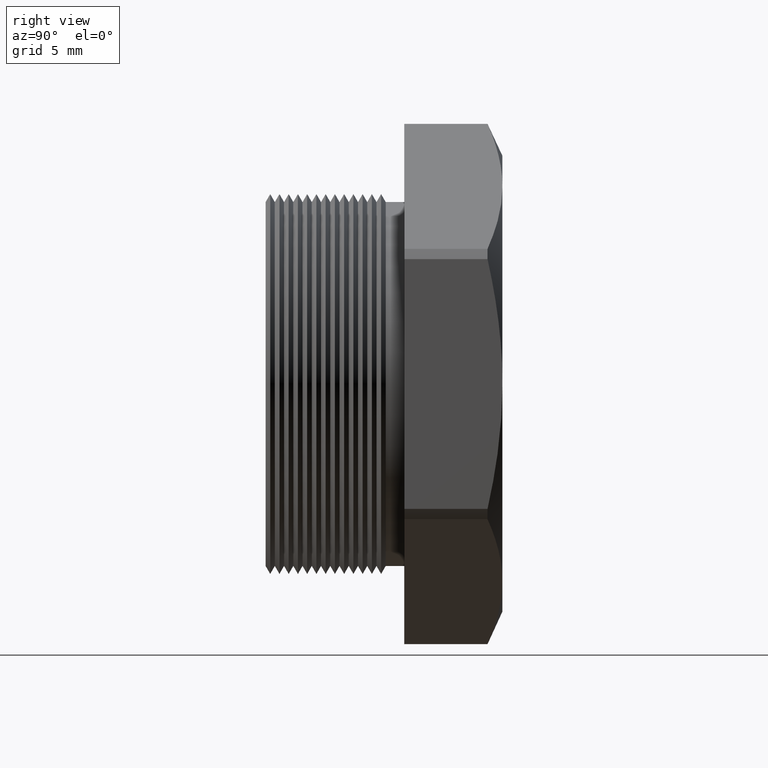
[diagram: clean part render]
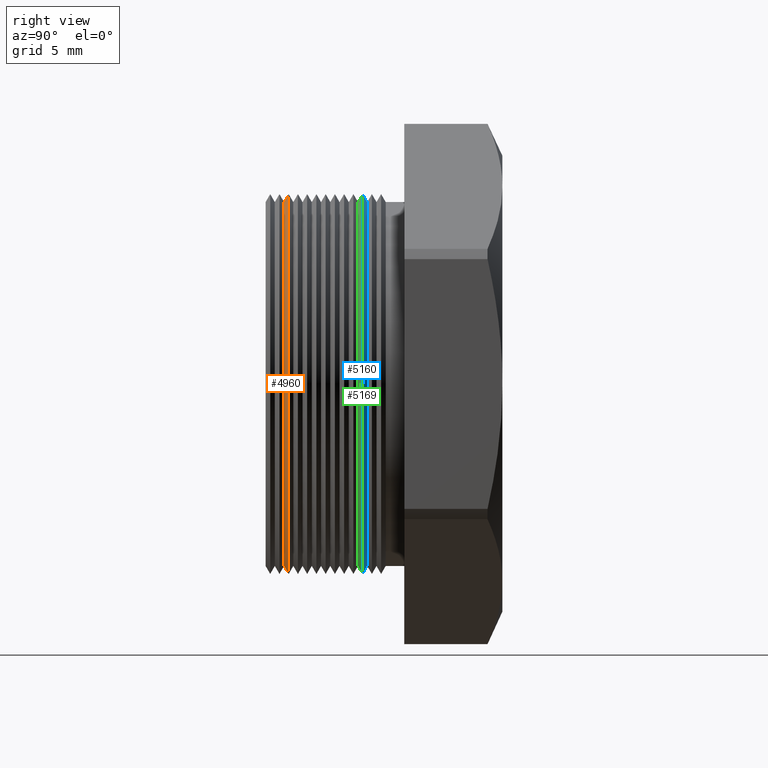
[diagram: same view with three faces highlighted in distinct colors, each labeled with its STEP entity id]
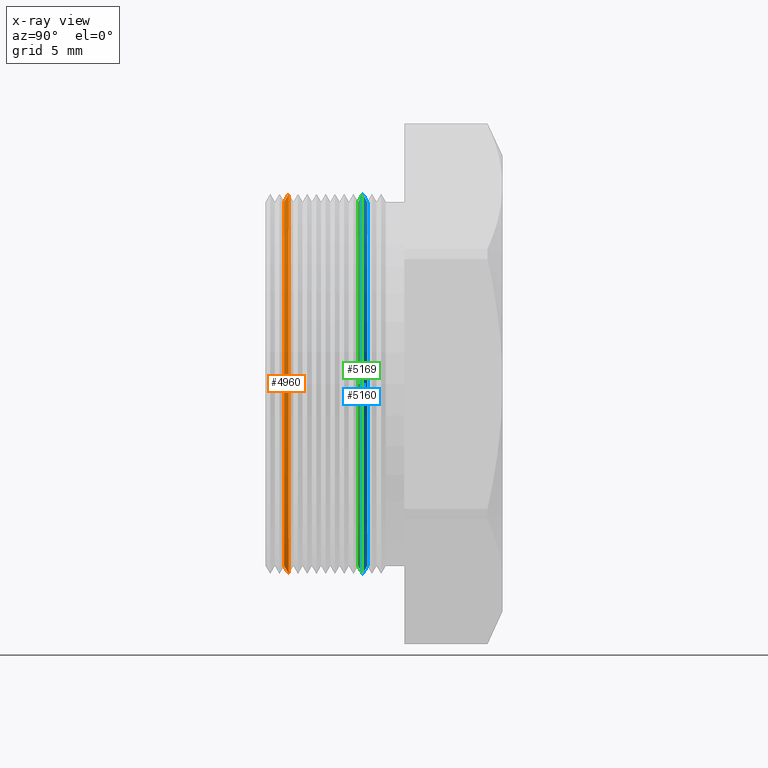
[diagram: x-ray of the same camera — body ghosted, the three highlighted faces saturated]
A machine part, right view with three faces highlighted in distinct colors.
The next image is the same camera in x-ray (body ghosted, the three faces saturated) — at least one of them is partly hidden behind the body in this view.
Their STEP definitions:

[orange] entity #4960 — the highlighted conical surface has half-angle 60 deg.
#1916 = CARTESIAN_POINT ( 'NONE',  ( 0.0000000000000000000, 0.03755489058294799600, -0.3287738815610546400 ) ) ;
#1917 = CARTESIAN_POINT ( 'NONE',  ( 0.0000000000000000000, 0.02960253635588708600, -0.3150000000000000000 ) ) ;
#1931 = DIRECTION ( 'NONE',  ( 0.0000000000000000000, 0.4999999999999991100, 0.8660254037844391500 ) ) ;
#1932 = VECTOR ( 'NONE', #1931, 39.37007874015748100 ) ;
#1933 = CARTESIAN_POINT ( 'NONE',  ( 0.0000000000000000000, 0.03755489058294799600, 0.3287738815610546400 ) ) ;
#1934 = LINE ( 'NONE', #1933, #1932 ) ;
#1935 = CARTESIAN_POINT ( 'NONE',  ( 4.026318816969966200E-017, 0.03755489058294799600, 0.3287738815610546400 ) ) ;
#1936 = DIRECTION ( 'NONE',  ( 0.0000000000000000000, 0.0000000000000000000, 1.000000000000000000 ) ) ;
#1937 = DIRECTION ( 'NONE',  ( -0.0000000000000000000, 1.000000000000000000, -0.0000000000000000000 ) ) ;
#1938 = CARTESIAN_POINT ( 'NONE',  ( 0.0000000000000000000, 0.03755489058294799600, 0.0000000000000000000 ) ) ;
#1939 = AXIS2_PLACEMENT_3D ( 'NONE', #1938, #1937, #1936 ) ;
#1940 = CIRCLE ( 'NONE', #1939, 0.3287738815610546400 ) ;
#1941 = DIRECTION ( 'NONE',  ( 1.060575238724907500E-016, 0.4999999999999991100, -0.8660254037844391500 ) ) ;
#1942 = VECTOR ( 'NONE', #1941, 39.37007874015748100 ) ;
#1943 = CARTESIAN_POINT ( 'NONE',  ( 4.026318816969965600E-017, 0.03755489058294799600, -0.3287738815610546400 ) ) ;
#1944 = LINE ( 'NONE', #1943, #1942 ) ;
#2062 = CARTESIAN_POINT ( 'NONE',  ( 3.857637417314162700E-017, 0.02960253635588708600, 0.3150000000000000000 ) ) ;
#2063 = DIRECTION ( 'NONE',  ( 0.0000000000000000000, 0.0000000000000000000, 1.000000000000000000 ) ) ;
#2064 = DIRECTION ( 'NONE',  ( -0.0000000000000000000, 1.000000000000000000, -0.0000000000000000000 ) ) ;
#2065 = CARTESIAN_POINT ( 'NONE',  ( 0.0000000000000000000, 0.02960253635588708600, 0.0000000000000000000 ) ) ;
#2066 = AXIS2_PLACEMENT_3D ( 'NONE', #2065, #2064, #2063 ) ;
#2067 = DIRECTION ( 'NONE',  ( 0.0000000000000000000, 0.0000000000000000000, 1.000000000000000000 ) ) ;
#2068 = DIRECTION ( 'NONE',  ( -0.0000000000000000000, 1.000000000000000000, -0.0000000000000000000 ) ) ;
#2069 = CARTESIAN_POINT ( 'NONE',  ( 0.0000000000000000000, 0.03755489058294799600, 0.0000000000000000000 ) ) ;
#2070 = AXIS2_PLACEMENT_3D ( 'NONE', #2069, #2068, #2067 ) ;
#2071 = CONICAL_SURFACE ( 'NONE', #2070, 0.3287738815610546400, 1.047197551196598700 ) ;
#2072 = CIRCLE ( 'NONE', #2066, 0.3150000000000000000 ) ;
#2073 = FACE_OUTER_BOUND ( 'NONE', #4961, .T. ) ;
#4880 = VERTEX_POINT ( 'NONE', #1917 ) ;
#4881 = VERTEX_POINT ( 'NONE', #1916 ) ;
#4897 = ORIENTED_EDGE ( 'NONE', *, *, #4898, .T. ) ;
#4898 = EDGE_CURVE ( 'NONE', #4880, #4881, #1944, .T. ) ;
#4899 = ORIENTED_EDGE ( 'NONE', *, *, #4900, .F. ) ;
#4900 = EDGE_CURVE ( 'NONE', #4901, #4881, #1940, .T. ) ;
#4901 = VERTEX_POINT ( 'NONE', #1935 ) ;
#4902 = ORIENTED_EDGE ( 'NONE', *, *, #4903, .F. ) ;
#4903 = EDGE_CURVE ( 'NONE', #4964, #4901, #1934, .T. ) ;
#4960 = ADVANCED_FACE ( 'NONE', ( #2073 ), #2071, .T. ) ;
#4961 = EDGE_LOOP ( 'NONE', ( #4962, #4897, #4899, #4902 ) ) ;
#4962 = ORIENTED_EDGE ( 'NONE', *, *, #4963, .T. ) ;
#4963 = EDGE_CURVE ( 'NONE', #4964, #4880, #2072, .T. ) ;
#4964 = VERTEX_POINT ( 'NONE', #2062 ) ;

[blue] entity #5160 — the highlighted conical surface has half-angle 60 deg.
#2270 = DIRECTION ( 'NONE',  ( 1.060575238724906300E-016, -0.5000000000000008900, 0.8660254037844380400 ) ) ;
#2271 = VECTOR ( 'NONE', #2270, 39.37007874015748100 ) ;
#2273 = CARTESIAN_POINT ( 'NONE',  ( 3.857637417314162700E-017, 0.1735072448100089500, 0.3150000000000000000 ) ) ;
#2274 = LINE ( 'NONE', #2273, #2271 ) ;
#2276 = CARTESIAN_POINT ( 'NONE',  ( 3.857637417314162700E-017, 0.1735072448100089500, 0.3150000000000000000 ) ) ;
#2408 = DIRECTION ( 'NONE',  ( 0.0000000000000000000, -0.5000000000000008900, -0.8660254037844380400 ) ) ;
#2409 = VECTOR ( 'NONE', #2408, 39.37007874015748100 ) ;
#2410 = CARTESIAN_POINT ( 'NONE',  ( 0.0000000000000000000, 0.1735072448100089500, -0.3150000000000000000 ) ) ;
#2411 = LINE ( 'NONE', #2410, #2409 ) ;
#2449 = DIRECTION ( 'NONE',  ( 0.0000000000000000000, 0.0000000000000000000, -1.000000000000000000 ) ) ;
#2450 = DIRECTION ( 'NONE',  ( 0.0000000000000000000, -1.000000000000000000, 0.0000000000000000000 ) ) ;
#2451 = CARTESIAN_POINT ( 'NONE',  ( 0.0000000000000000000, 0.1735072448100089500, 0.0000000000000000000 ) ) ;
#2452 = AXIS2_PLACEMENT_3D ( 'NONE', #2451, #2450, #2449 ) ;
#2453 = CONICAL_SURFACE ( 'NONE', #2452, 0.3150000000000000000, 1.047197551196596700 ) ;
#2454 = FACE_OUTER_BOUND ( 'NONE', #5161, .T. ) ;
#2459 = CARTESIAN_POINT ( 'NONE',  ( 4.026318816969966200E-017, 0.1655548905829480100, 0.3287738815610546400 ) ) ;
#2460 = DIRECTION ( 'NONE',  ( 0.0000000000000000000, 0.0000000000000000000, 1.000000000000000000 ) ) ;
#2461 = DIRECTION ( 'NONE',  ( -0.0000000000000000000, 1.000000000000000000, -0.0000000000000000000 ) ) ;
#2462 = CARTESIAN_POINT ( 'NONE',  ( 0.0000000000000000000, 0.1655548905829480100, 0.0000000000000000000 ) ) ;
#2463 = AXIS2_PLACEMENT_3D ( 'NONE', #2462, #2461, #2460 ) ;
#2464 = CIRCLE ( 'NONE', #2463, 0.3287738815610546400 ) ;
#2465 = CARTESIAN_POINT ( 'NONE',  ( 0.0000000000000000000, 0.1655548905829480100, -0.3287738815610546400 ) ) ;
#2511 = CARTESIAN_POINT ( 'NONE',  ( 0.0000000000000000000, 0.1735072448100089500, -0.3150000000000000000 ) ) ;
#2512 = DIRECTION ( 'NONE',  ( 0.0000000000000000000, 0.0000000000000000000, -1.000000000000000000 ) ) ;
#2513 = DIRECTION ( 'NONE',  ( 0.0000000000000000000, -1.000000000000000000, 0.0000000000000000000 ) ) ;
#2514 = CARTESIAN_POINT ( 'NONE',  ( 0.0000000000000000000, 0.1735072448100089500, 0.0000000000000000000 ) ) ;
#2515 = AXIS2_PLACEMENT_3D ( 'NONE', #2514, #2513, #2512 ) ;
#2516 = CIRCLE ( 'NONE', #2515, 0.3150000000000000000 ) ;
#5050 = VERTEX_POINT ( 'NONE', #2276 ) ;
#5051 = ORIENTED_EDGE ( 'NONE', *, *, #5052, .T. ) ;
#5052 = EDGE_CURVE ( 'NONE', #5050, #5157, #2274, .T. ) ;
#5053 = ORIENTED_EDGE ( 'NONE', *, *, #5156, .T. ) ;
#5117 = ORIENTED_EDGE ( 'NONE', *, *, #5118, .F. ) ;
#5118 = EDGE_CURVE ( 'NONE', #5164, #5154, #2411, .T. ) ;
#5154 = VERTEX_POINT ( 'NONE', #2465 ) ;
#5156 = EDGE_CURVE ( 'NONE', #5157, #5154, #2464, .T. ) ;
#5157 = VERTEX_POINT ( 'NONE', #2459 ) ;
#5160 = ADVANCED_FACE ( 'NONE', ( #2454 ), #2453, .T. ) ;
#5161 = EDGE_LOOP ( 'NONE', ( #5162, #5051, #5053, #5117 ) ) ;
#5162 = ORIENTED_EDGE ( 'NONE', *, *, #5163, .T. ) ;
#5163 = EDGE_CURVE ( 'NONE', #5164, #5050, #2516, .T. ) ;
#5164 = VERTEX_POINT ( 'NONE', #2511 ) ;

[green] entity #5169 — the highlighted conical surface has half-angle 60 deg.
#2326 = DIRECTION ( 'NONE',  ( 0.0000000000000000000, 0.0000000000000000000, 1.000000000000000000 ) ) ;
#2327 = DIRECTION ( 'NONE',  ( -0.0000000000000000000, 1.000000000000000000, -0.0000000000000000000 ) ) ;
#2328 = CARTESIAN_POINT ( 'NONE',  ( 0.0000000000000000000, 0.1576025363558870900, 0.0000000000000000000 ) ) ;
#2329 = AXIS2_PLACEMENT_3D ( 'NONE', #2328, #2327, #2326 ) ;
#2331 = CIRCLE ( 'NONE', #2329, 0.3150000000000000000 ) ;
#2455 = DIRECTION ( 'NONE',  ( 0.0000000000000000000, 0.4999999999999991100, 0.8660254037844391500 ) ) ;
#2456 = VECTOR ( 'NONE', #2455, 39.37007874015748100 ) ;
#2457 = CARTESIAN_POINT ( 'NONE',  ( 0.0000000000000000000, 0.1655548905829480100, 0.3287738815610546400 ) ) ;
#2458 = LINE ( 'NONE', #2457, #2456 ) ;
#2459 = CARTESIAN_POINT ( 'NONE',  ( 4.026318816969966200E-017, 0.1655548905829480100, 0.3287738815610546400 ) ) ;
#2460 = DIRECTION ( 'NONE',  ( 0.0000000000000000000, 0.0000000000000000000, 1.000000000000000000 ) ) ;
#2461 = DIRECTION ( 'NONE',  ( -0.0000000000000000000, 1.000000000000000000, -0.0000000000000000000 ) ) ;
#2462 = CARTESIAN_POINT ( 'NONE',  ( 0.0000000000000000000, 0.1655548905829480100, 0.0000000000000000000 ) ) ;
#2463 = AXIS2_PLACEMENT_3D ( 'NONE', #2462, #2461, #2460 ) ;
#2464 = CIRCLE ( 'NONE', #2463, 0.3287738815610546400 ) ;
#2465 = CARTESIAN_POINT ( 'NONE',  ( 0.0000000000000000000, 0.1655548905829480100, -0.3287738815610546400 ) ) ;
#2466 = DIRECTION ( 'NONE',  ( 1.060575238724907500E-016, 0.4999999999999991100, -0.8660254037844391500 ) ) ;
#2467 = VECTOR ( 'NONE', #2466, 39.37007874015748100 ) ;
#2468 = CARTESIAN_POINT ( 'NONE',  ( 4.026318816969965600E-017, 0.1655548905829480100, -0.3287738815610546400 ) ) ;
#2469 = LINE ( 'NONE', #2468, #2467 ) ;
#2471 = CARTESIAN_POINT ( 'NONE',  ( 0.0000000000000000000, 0.1576025363558870900, -0.3150000000000000000 ) ) ;
#2472 = CARTESIAN_POINT ( 'NONE',  ( 3.857637417314162700E-017, 0.1576025363558870900, 0.3150000000000000000 ) ) ;
#2492 = DIRECTION ( 'NONE',  ( 0.0000000000000000000, 0.0000000000000000000, 1.000000000000000000 ) ) ;
#2493 = DIRECTION ( 'NONE',  ( -0.0000000000000000000, 1.000000000000000000, -0.0000000000000000000 ) ) ;
#2494 = CARTESIAN_POINT ( 'NONE',  ( 0.0000000000000000000, 0.1655548905829480100, 0.0000000000000000000 ) ) ;
#2495 = AXIS2_PLACEMENT_3D ( 'NONE', #2494, #2493, #2492 ) ;
#2496 = CONICAL_SURFACE ( 'NONE', #2495, 0.3287738815610546400, 1.047197551196598700 ) ;
#2500 = FACE_OUTER_BOUND ( 'NONE', #5170, .T. ) ;
#5093 = EDGE_CURVE ( 'NONE', #5150, #5151, #2331, .T. ) ;
#5150 = VERTEX_POINT ( 'NONE', #2472 ) ;
#5151 = VERTEX_POINT ( 'NONE', #2471 ) ;
#5152 = ORIENTED_EDGE ( 'NONE', *, *, #5153, .T. ) ;
#5153 = EDGE_CURVE ( 'NONE', #5151, #5154, #2469, .T. ) ;
#5154 = VERTEX_POINT ( 'NONE', #2465 ) ;
#5155 = ORIENTED_EDGE ( 'NONE', *, *, #5156, .F. ) ;
#5156 = EDGE_CURVE ( 'NONE', #5157, #5154, #2464, .T. ) ;
#5157 = VERTEX_POINT ( 'NONE', #2459 ) ;
#5158 = ORIENTED_EDGE ( 'NONE', *, *, #5159, .F. ) ;
#5159 = EDGE_CURVE ( 'NONE', #5150, #5157, #2458, .T. ) ;
#5169 = ADVANCED_FACE ( 'NONE', ( #2500 ), #2496, .T. ) ;
#5170 = EDGE_LOOP ( 'NONE', ( #5171, #5152, #5155, #5158 ) ) ;
#5171 = ORIENTED_EDGE ( 'NONE', *, *, #5093, .T. ) ;